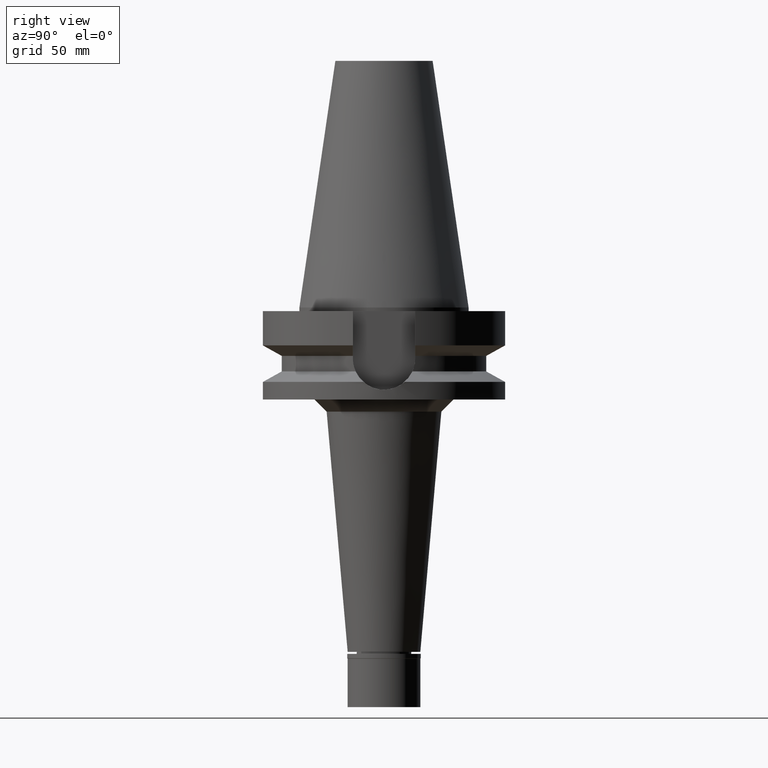
[diagram: clean part render]
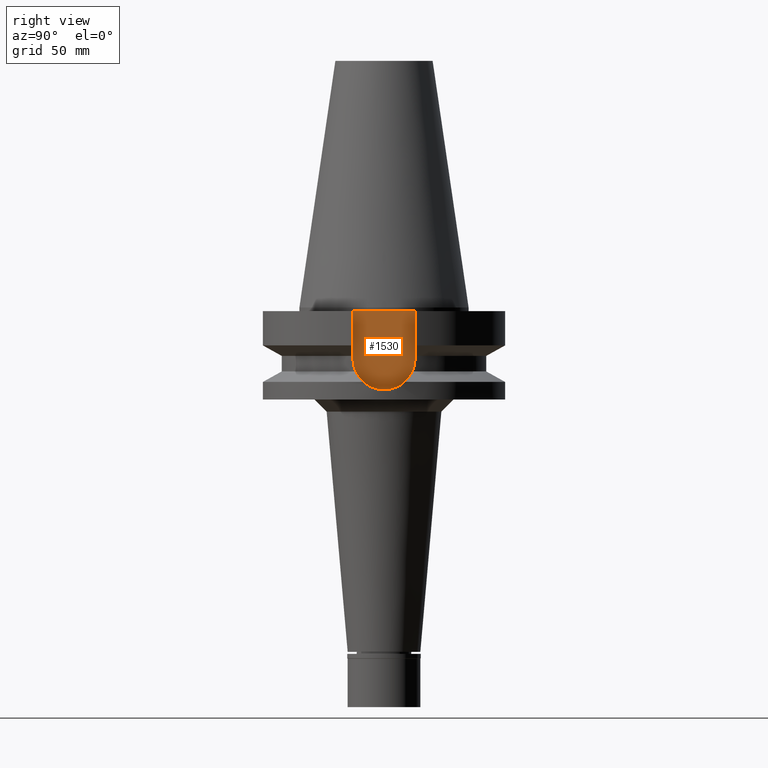
[diagram: same view with one face highlighted and labeled with its STEP entity id]
A machine part, right view. The second image highlights one B-rep face of the part: STEP entity #1530.
In plain terms, the highlighted planar face has unit normal (1, 0, 0).
Its self-contained STEP definition (entity closure, byte-faithful):
#18 = DIRECTION ( 'NONE',  ( -1.000000000000000000, 0.0000000000000000000, 0.0000000000000000000 ) ) ;
#35 = CARTESIAN_POINT ( 'NONE',  ( 35.39999999999999858, 12.84999999999999964, -1.500000000000000000 ) ) ;
#231 = VERTEX_POINT ( 'NONE', #1555 ) ;
#511 = AXIS2_PLACEMENT_3D ( 'NONE', #1984, #18, #2769 ) ;
#554 = LINE ( 'NONE', #35, #2267 ) ;
#599 = EDGE_CURVE ( 'NONE', #2634, #231, #2654, .T. ) ;
#678 = CARTESIAN_POINT ( 'NONE',  ( 35.39999999999999858, -12.84999999999999964, -21.14999999999999858 ) ) ;
#735 = EDGE_CURVE ( 'NONE', #2031, #2634, #1916, .T. ) ;
#761 = EDGE_LOOP ( 'NONE', ( #1323, #1686, #821, #1000 ) ) ;
#821 = ORIENTED_EDGE ( 'NONE', *, *, #2554, .F. ) ;
#1000 = ORIENTED_EDGE ( 'NONE', *, *, #1195, .T. ) ;
#1117 = CARTESIAN_POINT ( 'NONE',  ( 35.39999999999999858, 0.0000000000000000000, 0.0000000000000000000 ) ) ;
#1142 = VERTEX_POINT ( 'NONE', #1879 ) ;
#1195 = EDGE_CURVE ( 'NONE', #1142, #231, #1707, .T. ) ;
#1323 = ORIENTED_EDGE ( 'NONE', *, *, #599, .F. ) ;
#1469 = DIRECTION ( 'NONE',  ( 0.0000000000000000000, -1.000000000000000000, 0.0000000000000000000 ) ) ;
#1530 = ADVANCED_FACE ( 'NONE', ( #2655 ), #1601, .T. ) ;
#1554 = DIRECTION ( 'NONE',  ( 0.0000000000000000000, 0.0000000000000000000, -1.000000000000000000 ) ) ;
#1555 = CARTESIAN_POINT ( 'NONE',  ( 35.39999999999999858, -12.84999999999999964, -1.500000000000000000 ) ) ;
#1601 = PLANE ( 'NONE',  #2887 ) ;
#1670 = DIRECTION ( 'NONE',  ( 0.0000000000000000000, 0.0000000000000000000, 1.000000000000000000 ) ) ;
#1680 = CARTESIAN_POINT ( 'NONE',  ( 35.39999999999999858, -12.84999999999999964, -21.14999999999999858 ) ) ;
#1686 = ORIENTED_EDGE ( 'NONE', *, *, #735, .F. ) ;
#1707 = LINE ( 'NONE', #3190, #2799 ) ;
#1879 = CARTESIAN_POINT ( 'NONE',  ( 35.39999999999999858, 12.84999999999999964, -1.500000000000000000 ) ) ;
#1916 = CIRCLE ( 'NONE', #511, 12.84999999999999964 ) ;
#1984 = CARTESIAN_POINT ( 'NONE',  ( 35.39999999999999858, 0.0000000000000000000, -21.14999999999999858 ) ) ;
#2031 = VERTEX_POINT ( 'NONE', #2651 ) ;
#2267 = VECTOR ( 'NONE', #1554, 1000.000000000000000 ) ;
#2554 = EDGE_CURVE ( 'NONE', #1142, #2031, #554, .T. ) ;
#2587 = VECTOR ( 'NONE', #1670, 1000.000000000000000 ) ;
#2634 = VERTEX_POINT ( 'NONE', #1680 ) ;
#2651 = CARTESIAN_POINT ( 'NONE',  ( 35.39999999999999858, 12.84999999999999964, -21.14999999999999858 ) ) ;
#2654 = LINE ( 'NONE', #678, #2587 ) ;
#2655 = FACE_OUTER_BOUND ( 'NONE', #761, .T. ) ;
#2769 = DIRECTION ( 'NONE',  ( 0.0000000000000000000, 1.000000000000000000, 0.0000000000000000000 ) ) ;
#2799 = VECTOR ( 'NONE', #1469, 1000.000000000000000 ) ;
#2840 = DIRECTION ( 'NONE',  ( 0.0000000000000000000, 1.000000000000000000, 0.0000000000000000000 ) ) ;
#2887 = AXIS2_PLACEMENT_3D ( 'NONE', #1117, #3139, #2840 ) ;
#3139 = DIRECTION ( 'NONE',  ( 1.000000000000000000, 0.0000000000000000000, 0.0000000000000000000 ) ) ;
#3190 = CARTESIAN_POINT ( 'NONE',  ( 35.39999999999999858, 12.84999999999999964, -1.500000000000000000 ) ) ;